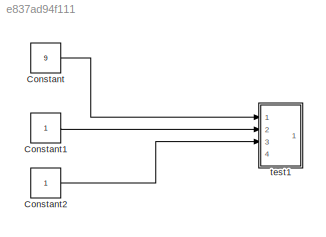
MODEL slx_e837ad94f111
KIND model
CONFIG AbsTol = auto
CONFIG EnableMultiTasking = off
CONFIG FixedStep = auto
CONFIG MaxStep = auto
CONFIG MinStep = auto
CONFIG RelTol = 1e-3
CONFIG SampleTimeConstraint = Unconstrained
CONFIG Solver = VariableStepAuto
CONFIG SolverName = VariableStepAuto
CONFIG StartTime = 0.0
CONFIG StopTime = 10.0
BLOCK [Constant] Constant
  Value = 9
BLOCK [Constant] Constant1
BLOCK [Constant] Constant2
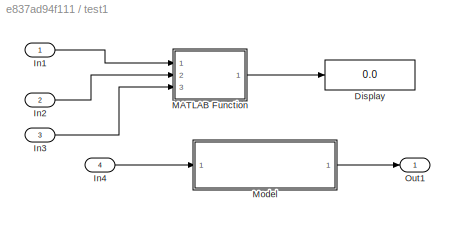
BLOCK [SubSystem] test1
  Ports = [4, 1]
  RequestExecContextInheritance = off
BLOCK [Display] test1/Display
  Decimation = 1
  Ports = [1]
BLOCK [Inport] test1/In1
  IconDisplay = Port number
BLOCK [Inport] test1/In2
  IconDisplay = Port number
  Port = 2
BLOCK [Inport] test1/In3
  IconDisplay = Port number
  Port = 3
BLOCK [Inport] test1/In4
  IconDisplay = Port number
  Port = 4
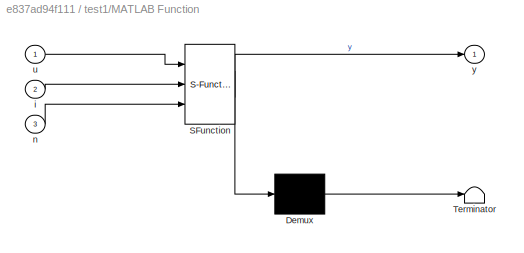
BLOCK [SubSystem] test1/MATLAB Function
  ErrorFcn = Stateflow.Translate.translate
  PermitHierarchicalResolution = ExplicitOnly
  Ports = [3, 1]
  RequestExecContextInheritance = off
  SFBlockType = MATLAB Function
  TreatAsAtomicUnit = on
BLOCK [Demux] test1/MATLAB Function/ Demux 
  Outputs = 1
  Ports = [1, 1]
BLOCK [S-Function] test1/MATLAB Function/ SFunction 
  EnableBusSupport = on
  FunctionName = sf_sfun
  PortCounts = [3 2]
  Ports = [3, 2]
  SFcnIsStateOwnerBlock = off
  SFunctionDeploymentMode = off
  Tag = Stateflow S-Function matlab_function_code_trial 2
BLOCK [Terminator] test1/MATLAB Function/ Terminator 
BLOCK [Inport] test1/MATLAB Function/i
  IconDisplay = Port number
  Port = 2
BLOCK [Inport] test1/MATLAB Function/n
  IconDisplay = Port number
  Port = 3
BLOCK [Inport] test1/MATLAB Function/u
  IconDisplay = Port number
BLOCK [Outport] test1/MATLAB Function/y
  IconDisplay = Port number
BLOCK [ModelReference] test1/Model
  ModelNameDialog = solver.slx
  ModelReferenceVersion = 1.8
  Ports = [1, 1]
BLOCK [Outport] test1/Out1
  IconDisplay = Port number
LINE Constant1:1 -> test1:2
LINE Constant2:1 -> test1:3
LINE Constant:1 -> test1:1
LINE test1/In1:1 -> test1/MATLAB Function:1
LINE test1/In2:1 -> test1/MATLAB Function:2
LINE test1/In3:1 -> test1/MATLAB Function:3
LINE test1/In4:1 -> test1/Model:1
LINE test1/MATLAB Function:1 -> test1/Display:1
LINE test1/Model:1 -> test1/Out1:1
CHART test1/MATLAB Function states=1 transitions=1
  STATE_LABEL 'eML_blk_kernel()'
  STATE_LABEL 'SCRIPT:\nfunction y = fcn(u,i,n)\n\n\ny = u*2+i*3-n;\n'
